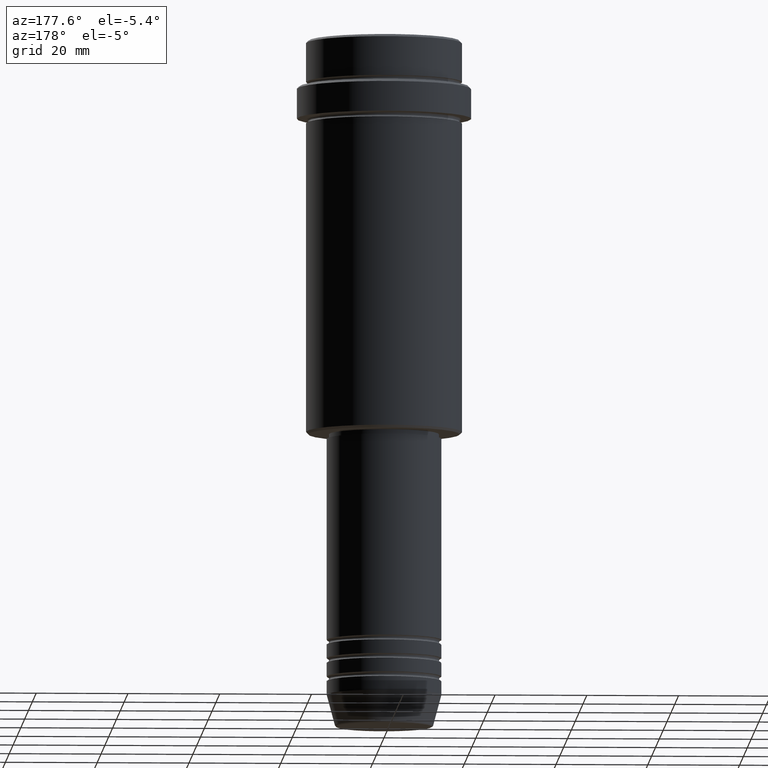
[diagram: clean part render]
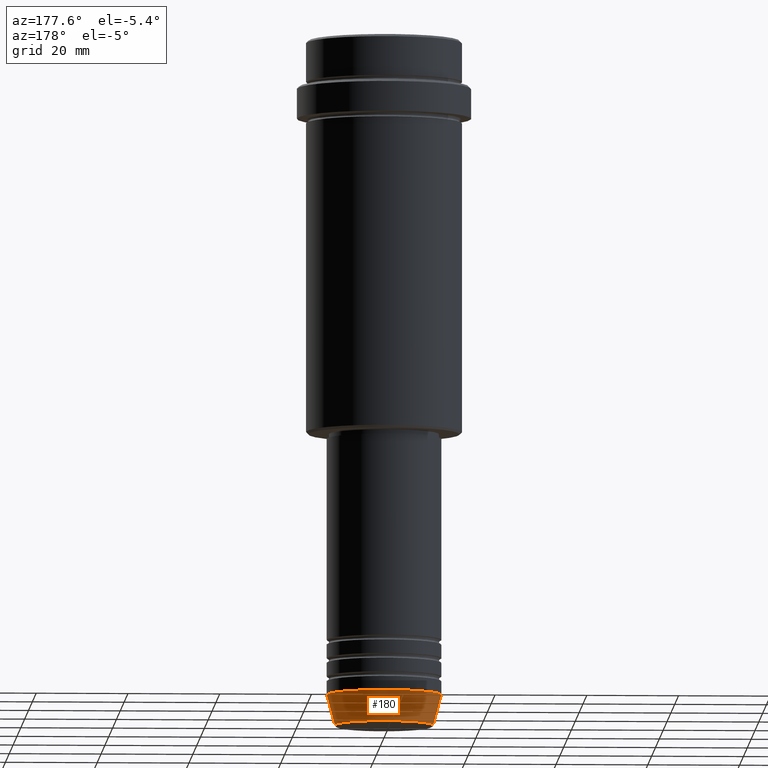
[diagram: same view with one face highlighted and labeled with its STEP entity id]
A machine part, auxiliary view. The second image highlights one B-rep face of the part: STEP entity #180.
In plain terms, the highlighted conical surface has half-angle 15 deg.
Its self-contained STEP definition (entity closure, byte-faithful):
#9 = CARTESIAN_POINT ( 'NONE',  ( 12.50000000000000000, 0.000000000000000000, -143.0000000000000284 ) ) ;
#20 = CARTESIAN_POINT ( 'NONE',  ( 10.72365507213718416, 0.000000000000000000, -149.6294095225512990 ) ) ;
#69 = DIRECTION ( 'NONE',  ( -0.000000000000000000, -0.000000000000000000, 1.000000000000000000 ) ) ;
#85 = LINE ( 'NONE', #838, #263 ) ;
#93 = CARTESIAN_POINT ( 'NONE',  ( 0.000000000000000000, 0.000000000000000000, -143.0000000000000284 ) ) ;
#134 = CARTESIAN_POINT ( 'NONE',  ( 0.000000000000000000, 0.000000000000000000, -149.6294095225512990 ) ) ;
#141 = ORIENTED_EDGE ( 'NONE', *, *, #605, .T. ) ;
#180 = ADVANCED_FACE ( 'NONE', ( #1352 ), #911, .T. ) ;
#211 = ORIENTED_EDGE ( 'NONE', *, *, #1159, .F. ) ;
#237 = AXIS2_PLACEMENT_3D ( 'NONE', #611, #69, #371 ) ;
#242 = CARTESIAN_POINT ( 'NONE',  ( 12.50000000000000000, 0.000000000000000000, -143.0000000000000284 ) ) ;
#263 = VECTOR ( 'NONE', #1403, 1000.000000000000000 ) ;
#314 = AXIS2_PLACEMENT_3D ( 'NONE', #134, #1011, #552 ) ;
#348 = EDGE_LOOP ( 'NONE', ( #480, #141, #781, #211 ) ) ;
#371 = DIRECTION ( 'NONE',  ( 1.000000000000000000, 0.000000000000000000, 0.000000000000000000 ) ) ;
#374 = EDGE_CURVE ( 'NONE', #1330, #498, #749, .T. ) ;
#393 = VERTEX_POINT ( 'NONE', #1172 ) ;
#444 = DIRECTION ( 'NONE',  ( 0.2588190451025213501, 0.000000000000000000, 0.9659258262890680902 ) ) ;
#480 = ORIENTED_EDGE ( 'NONE', *, *, #718, .T. ) ;
#498 = VERTEX_POINT ( 'NONE', #884 ) ;
#552 = DIRECTION ( 'NONE',  ( 1.000000000000000000, 0.000000000000000000, 0.000000000000000000 ) ) ;
#605 = EDGE_CURVE ( 'NONE', #393, #498, #85, .T. ) ;
#611 = CARTESIAN_POINT ( 'NONE',  ( 0.000000000000000000, 0.000000000000000000, -143.0000000000000284 ) ) ;
#651 = DIRECTION ( 'NONE',  ( -0.000000000000000000, -0.000000000000000000, 1.000000000000000000 ) ) ;
#667 = LINE ( 'NONE', #242, #685 ) ;
#685 = VECTOR ( 'NONE', #444, 1000.000000000000000 ) ;
#718 = EDGE_CURVE ( 'NONE', #1126, #393, #1036, .T. ) ;
#749 = CIRCLE ( 'NONE', #1317, 12.50000000000000000 ) ;
#781 = ORIENTED_EDGE ( 'NONE', *, *, #374, .F. ) ;
#838 = CARTESIAN_POINT ( 'NONE',  ( -12.50000000000000000, 1.530808498934191521E-15, -143.0000000000000284 ) ) ;
#884 = CARTESIAN_POINT ( 'NONE',  ( -12.50000000000000000, 1.530808498934191521E-15, -143.0000000000000284 ) ) ;
#911 = CONICAL_SURFACE ( 'NONE', #237, 12.50000000000000000, 0.2617993877991500740 ) ;
#1011 = DIRECTION ( 'NONE',  ( -0.000000000000000000, -0.000000000000000000, 1.000000000000000000 ) ) ;
#1036 = CIRCLE ( 'NONE', #314, 10.72365507213718416 ) ;
#1077 = DIRECTION ( 'NONE',  ( 1.000000000000000000, 0.000000000000000000, 0.000000000000000000 ) ) ;
#1126 = VERTEX_POINT ( 'NONE', #20 ) ;
#1159 = EDGE_CURVE ( 'NONE', #1126, #1330, #667, .T. ) ;
#1172 = CARTESIAN_POINT ( 'NONE',  ( -10.72365507213718416, 1.422038742429750121E-15, -149.6294095225512990 ) ) ;
#1317 = AXIS2_PLACEMENT_3D ( 'NONE', #93, #651, #1077 ) ;
#1330 = VERTEX_POINT ( 'NONE', #9 ) ;
#1352 = FACE_OUTER_BOUND ( 'NONE', #348, .T. ) ;
#1403 = DIRECTION ( 'NONE',  ( -0.2588190451025213501, 3.169619151431772337E-17, 0.9659258262890680902 ) ) ;